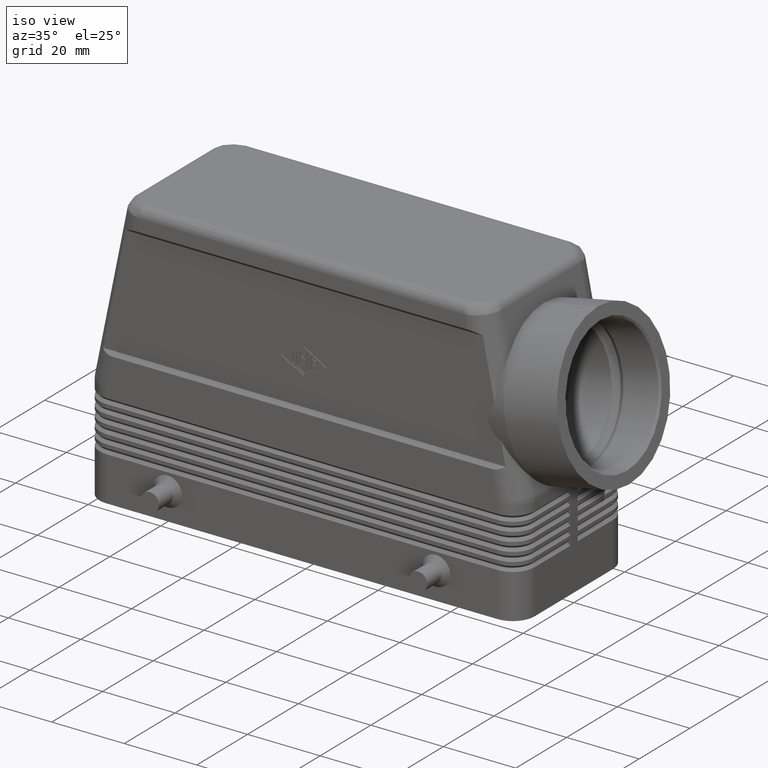
[diagram: clean part render]
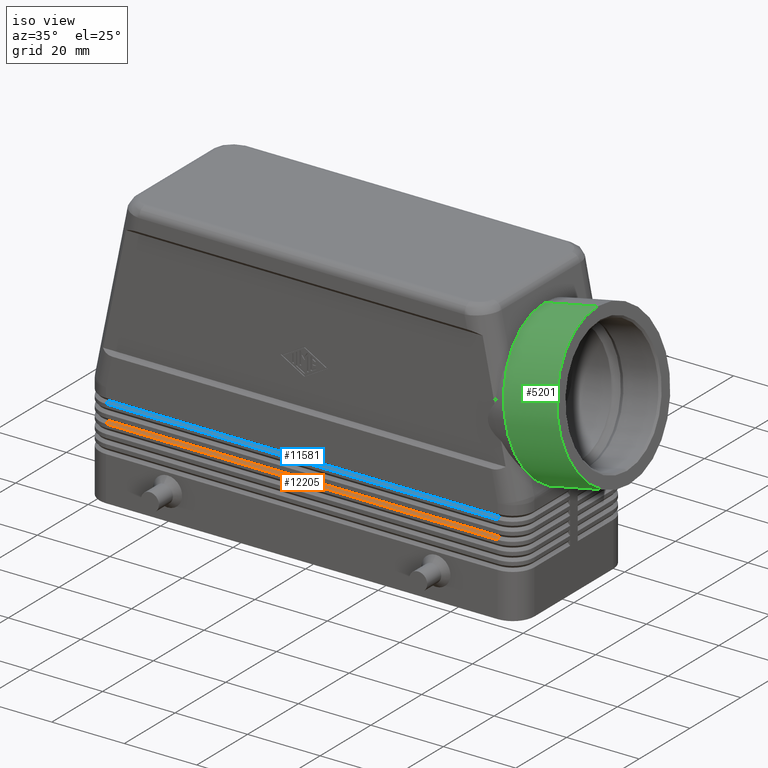
[diagram: same view with three faces highlighted in distinct colors, each labeled with its STEP entity id]
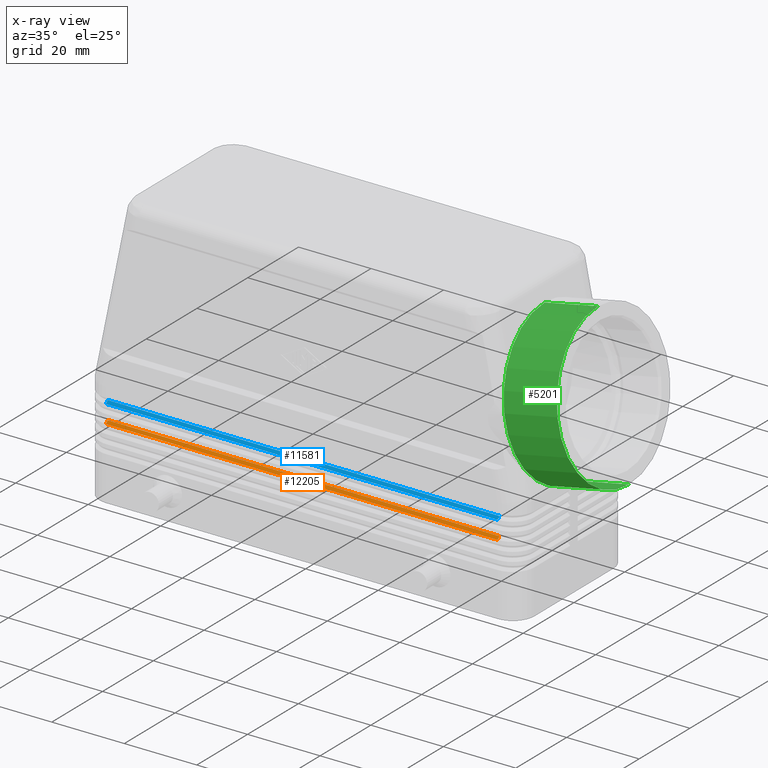
[diagram: x-ray of the same camera — body ghosted, the three highlighted faces saturated]
A machine part, iso view with three faces highlighted in distinct colors.
The next image is the same camera in x-ray (body ghosted, the three faces saturated) — at least one of them is partly hidden behind the body in this view.
Their STEP definitions:

[orange] entity #12205 — the highlighted planar face has unit normal (-0, -0.7071, 0.7071).
#1577=CARTESIAN_POINT('',(-54.0,-21.500000000000000,19.750000000000004));
#1578=VERTEX_POINT('',#1577);
#1608=CARTESIAN_POINT('',(54.0,-21.500000000000000,19.750000000000007));
#1609=VERTEX_POINT('',#1608);
#1648=CARTESIAN_POINT('',(54.000000000000014,-20.799999999999979,20.450000000000003));
#1649=VERTEX_POINT('',#1648);
#1657=CARTESIAN_POINT('',(54.0,-21.500000000000000,19.750000000000007));
#1658=DIRECTION('',(1.435513E-014,0.707106781186560,0.707106781186535));
#1659=VECTOR('',#1658,0.989949493661178);
#1660=LINE('',#1657,#1659);
#1661=EDGE_CURVE('',#1609,#1649,#1660,.T.);
#12166=CARTESIAN_POINT('',(-53.999999999999993,-20.800000000000001,20.450000000000003));
#12167=VERTEX_POINT('',#12166);
#12168=CARTESIAN_POINT('',(-54.0,-21.500000000000000,19.750000000000004));
#12169=DIRECTION('',(7.177566E-015,0.707106781186548,0.707106781186548));
#12170=VECTOR('',#12169,0.989949493661165);
#12171=LINE('',#12168,#12170);
#12172=EDGE_CURVE('',#1578,#12167,#12171,.T.);
#12184=CARTESIAN_POINT('',(6.938894E-015,-21.150000000000002,20.100000000000009));
#12185=DIRECTION('',(-3.047225E-034,-0.707106781186546,0.707106781186549));
#12186=DIRECTION('',(1.0,0.0,0.0));
#12187=AXIS2_PLACEMENT_3D('',#12184,#12185,#12186);
#12188=PLANE('',#12187);
#12189=ORIENTED_EDGE('',*,*,#1661,.T.);
#12190=CARTESIAN_POINT('',(54.000000000000014,-20.799999999999979,20.450000000000003));
#12191=DIRECTION('',(-1.0,0.0,0.0));
#12192=VECTOR('',#12191,108.0);
#12193=LINE('',#12190,#12192);
#12194=EDGE_CURVE('',#1649,#12167,#12193,.T.);
#12195=ORIENTED_EDGE('',*,*,#12194,.T.);
#12196=ORIENTED_EDGE('',*,*,#12172,.F.);
#12197=CARTESIAN_POINT('',(-54.0,-21.500000000000000,19.750000000000004));
#12198=DIRECTION('',(1.0,0.0,0.0));
#12199=VECTOR('',#12198,108.0);
#12200=LINE('',#12197,#12199);
#12201=EDGE_CURVE('',#1578,#1609,#12200,.T.);
#12202=ORIENTED_EDGE('',*,*,#12201,.T.);
#12203=EDGE_LOOP('',(#12189,#12195,#12196,#12202));
#12204=FACE_OUTER_BOUND('',#12203,.T.);
#12205=ADVANCED_FACE('',(#12204),#12188,.T.);

[blue] entity #11581 — the highlighted planar face has unit normal (-0, -0.7071, 0.7071).
#2061=CARTESIAN_POINT('',(-54.0,-21.500000000000000,24.750000000000007));
#2062=VERTEX_POINT('',#2061);
#2092=CARTESIAN_POINT('',(54.0,-21.500000000000000,24.750000000000011));
#2093=VERTEX_POINT('',#2092);
#2132=CARTESIAN_POINT('',(54.000000000000014,-20.799999999999979,25.450000000000003));
#2133=VERTEX_POINT('',#2132);
#2141=CARTESIAN_POINT('',(54.0,-21.500000000000000,24.750000000000011));
#2142=DIRECTION('',(1.435513E-014,0.707106781186562,0.707106781186533));
#2143=VECTOR('',#2142,0.989949493661176);
#2144=LINE('',#2141,#2143);
#2145=EDGE_CURVE('',#2093,#2133,#2144,.T.);
#11542=CARTESIAN_POINT('',(-53.999999999999993,-20.800000000000001,25.450000000000003));
#11543=VERTEX_POINT('',#11542);
#11544=CARTESIAN_POINT('',(-54.0,-21.500000000000000,24.750000000000007));
#11545=DIRECTION('',(7.177566E-015,0.707106781186549,0.707106781186546));
#11546=VECTOR('',#11545,0.989949493661163);
#11547=LINE('',#11544,#11546);
#11548=EDGE_CURVE('',#2062,#11543,#11547,.T.);
#11560=CARTESIAN_POINT('',(6.938894E-015,-21.150000000000002,25.100000000000009));
#11561=DIRECTION('',(-3.047225E-034,-0.707106781186545,0.707106781186550));
#11562=DIRECTION('',(1.0,0.0,0.0));
#11563=AXIS2_PLACEMENT_3D('',#11560,#11561,#11562);
#11564=PLANE('',#11563);
#11565=ORIENTED_EDGE('',*,*,#2145,.T.);
#11566=CARTESIAN_POINT('',(54.000000000000014,-20.799999999999979,25.450000000000003));
#11567=DIRECTION('',(-1.0,0.0,0.0));
#11568=VECTOR('',#11567,108.0);
#11569=LINE('',#11566,#11568);
#11570=EDGE_CURVE('',#2133,#11543,#11569,.T.);
#11571=ORIENTED_EDGE('',*,*,#11570,.T.);
#11572=ORIENTED_EDGE('',*,*,#11548,.F.);
#11573=CARTESIAN_POINT('',(-54.0,-21.500000000000000,24.750000000000007));
#11574=DIRECTION('',(1.0,0.0,0.0));
#11575=VECTOR('',#11574,108.0);
#11576=LINE('',#11573,#11575);
#11577=EDGE_CURVE('',#2062,#2093,#11576,.T.);
#11578=ORIENTED_EDGE('',*,*,#11577,.T.);
#11579=EDGE_LOOP('',(#11565,#11571,#11572,#11578));
#11580=FACE_OUTER_BOUND('',#11579,.T.);
#11581=ADVANCED_FACE('',(#11580),#11564,.T.);

[green] entity #5201 — the highlighted cylindrical surface (partial cylindrical patch) has radius 21.5 mm, axis along (-0.9798, 0, -0.2002).
#5160=CARTESIAN_POINT('',(63.585119228633246,0.0,50.603411455312184));
#5161=DIRECTION('',(-0.979761913591866,0.0,-0.200166412454252));
#5162=DIRECTION('',(0.200166412454252,0.0,-0.979761913591865));
#5163=AXIS2_PLACEMENT_3D('',#5160,#5161,#5162);
#5164=CYLINDRICAL_SURFACE('',#5163,21.500000000000011);
#5165=CARTESIAN_POINT('',(75.236911448338674,0.0,31.039778406493959));
#5166=VERTEX_POINT('',#5165);
#5167=CARTESIAN_POINT('',(60.540482744460675,0.0,28.037282219680169));
#5168=VERTEX_POINT('',#5167);
#5169=CARTESIAN_POINT('',(75.236911448338674,0.0,31.039778406493959));
#5170=DIRECTION('',(-0.979761913591865,0.0,-0.200166412454252));
#5171=VECTOR('',#5170,15.000000000000016);
#5172=LINE('',#5169,#5171);
#5173=EDGE_CURVE('',#5166,#5168,#5172,.T.);
#5174=ORIENTED_EDGE('',*,*,#5173,.F.);
#5175=CARTESIAN_POINT('',(66.629755712805803,-2.632904E-015,73.169540690944203));
#5176=VERTEX_POINT('',#5175);
#5177=CARTESIAN_POINT('',(70.933333580572238,0.0,52.104659548719077));
#5178=DIRECTION('',(-0.979761913591865,0.0,-0.200166412454252));
#5179=DIRECTION('',(0.200166412454252,0.0,-0.979761913591865));
#5180=AXIS2_PLACEMENT_3D('',#5177,#5178,#5179);
#5181=CIRCLE('',#5180,21.500000000000011);
#5182=EDGE_CURVE('',#5166,#5176,#5181,.T.);
#5183=ORIENTED_EDGE('',*,*,#5182,.T.);
#5184=CARTESIAN_POINT('',(51.933327008927812,-2.632904E-015,70.167044504130416));
#5185=VERTEX_POINT('',#5184);
#5186=CARTESIAN_POINT('',(51.933327008927812,-2.632904E-015,70.167044504130416));
#5187=DIRECTION('',(0.979761913591865,2.629536E-032,0.200166412454252));
#5188=VECTOR('',#5187,15.000000000000009);
#5189=LINE('',#5186,#5188);
#5190=EDGE_CURVE('',#5185,#5176,#5189,.T.);
#5191=ORIENTED_EDGE('',*,*,#5190,.F.);
#5192=CARTESIAN_POINT('',(56.236904876694247,0.0,49.102163361905291));
#5193=DIRECTION('',(-0.979761913591865,0.0,-0.200166412454252));
#5194=DIRECTION('',(0.200166412454252,0.0,-0.979761913591865));
#5195=AXIS2_PLACEMENT_3D('',#5192,#5193,#5194);
#5196=CIRCLE('',#5195,21.500000000000011);
#5197=EDGE_CURVE('',#5168,#5185,#5196,.T.);
#5198=ORIENTED_EDGE('',*,*,#5197,.F.);
#5199=EDGE_LOOP('',(#5174,#5183,#5191,#5198));
#5200=FACE_OUTER_BOUND('',#5199,.T.);
#5201=ADVANCED_FACE('',(#5200),#5164,.T.);